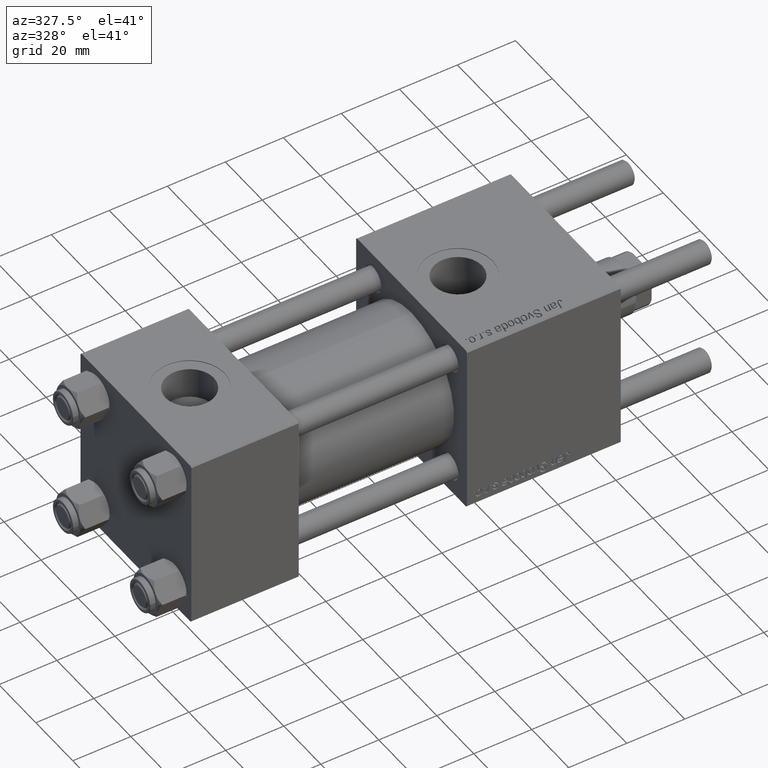
[diagram: clean part render]
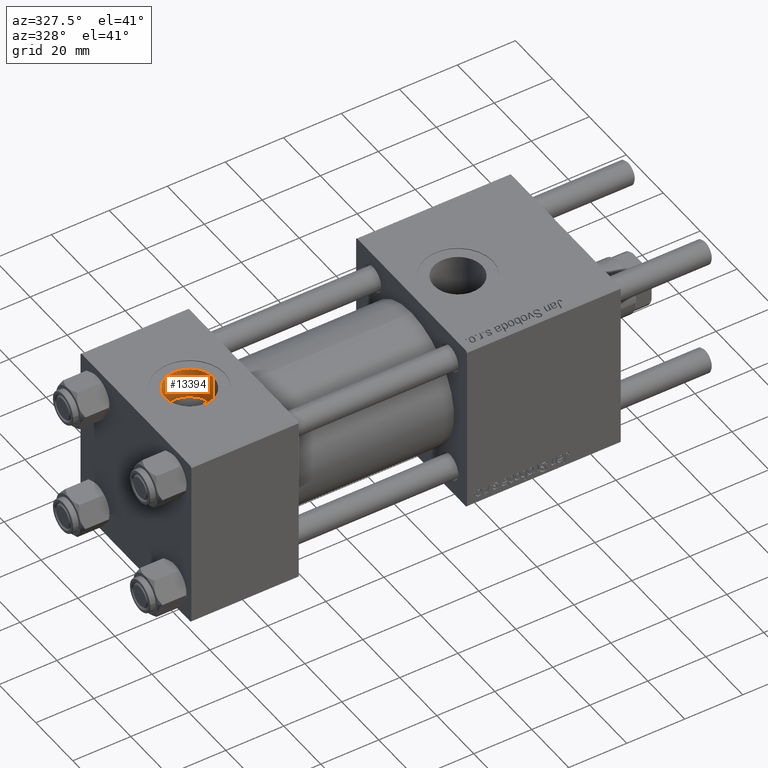
[diagram: same view with one face highlighted and labeled with its STEP entity id]
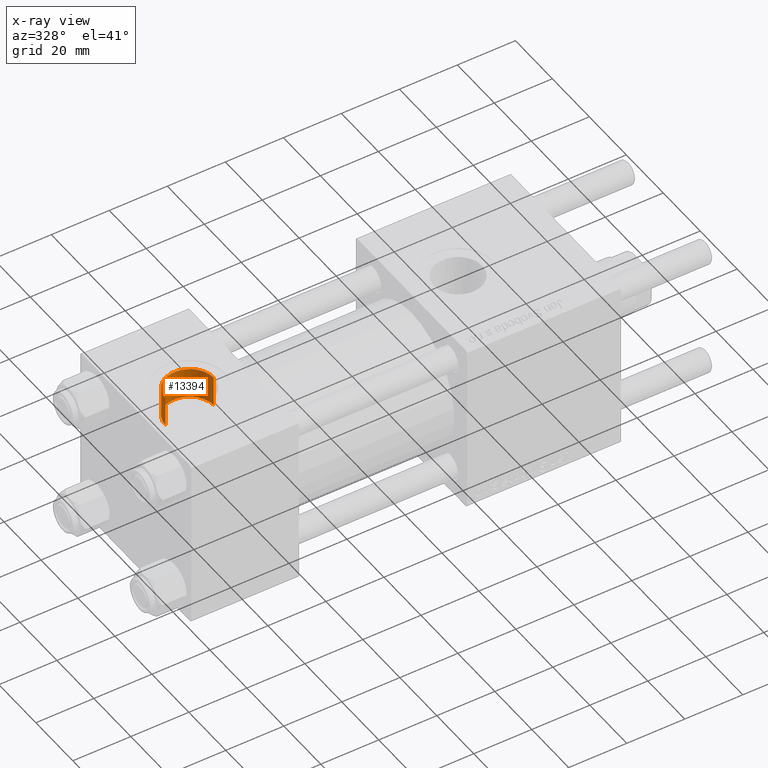
[diagram: x-ray of the same camera — body ghosted, the highlighted face saturated]
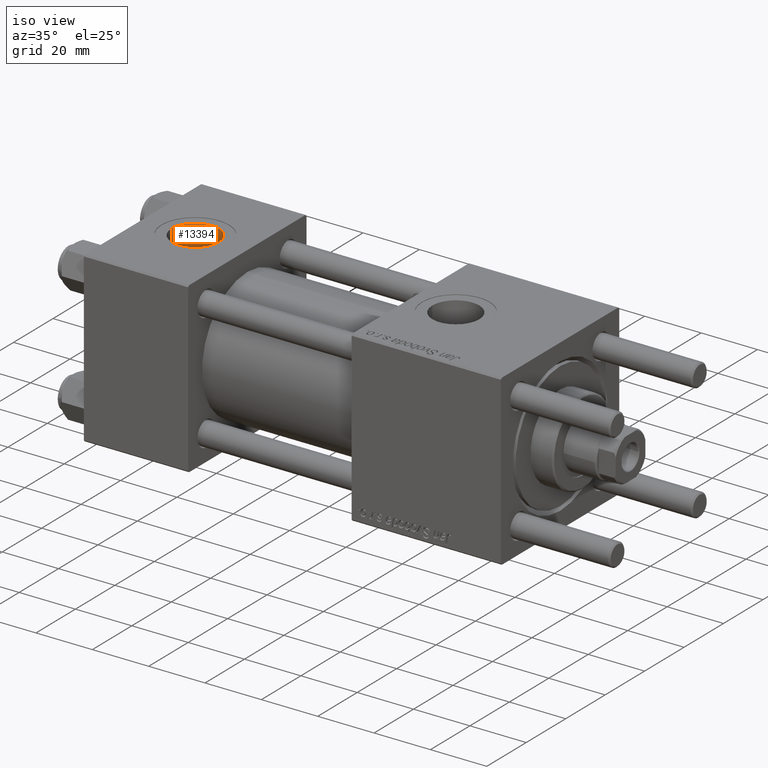
[diagram: same view with one face highlighted and labeled with its STEP entity id]
A machine part, auxiliary view. The second image highlights one B-rep face of the part: STEP entity #13394.
The next image is the same camera in x-ray: the body ghosted, the highlighted face saturated — about 0% of this face is hidden behind the body in this view.
A second angle (iso view) of the same face is appended — the face is thin or edge-on in the first view.
In plain terms, the highlighted cylindrical surface (edge-blend (fillet) strip) has radius 8.33 mm, axis along (0, 0, 1).
Its self-contained STEP definition (entity closure, byte-faithful):
#590 = VERTEX_POINT ( 'NONE', #32995 ) ;
#1878 = CARTESIAN_POINT ( 'NONE',  ( 10.16999999999999638, -2.449316168263869821E-15, 19.19999999999999574 ) ) ;
#3388 = CARTESIAN_POINT ( 'NONE',  ( 18.50000000000000000, -3.469446951953614978E-15, 19.19999999999999574 ) ) ;
#6945 = CIRCLE ( 'NONE', #42709, 8.330000000000000071 ) ;
#7136 = DIRECTION ( 'NONE',  ( -0.000000000000000000, -0.000000000000000000, 1.000000000000000000 ) ) ;
#7338 = DIRECTION ( 'NONE',  ( -0.000000000000000000, -0.000000000000000000, 1.000000000000000000 ) ) ;
#7446 = EDGE_CURVE ( 'NONE', #45607, #25686, #6945, .T. ) ;
#8711 = CARTESIAN_POINT ( 'NONE',  ( 10.16999999999999638, -2.449316168263869821E-15, 29.79999999999999716 ) ) ;
#9494 = EDGE_CURVE ( 'NONE', #49543, #25686, #21722, .T. ) ;
#10215 = EDGE_CURVE ( 'NONE', #590, #45607, #34291, .T. ) ;
#11713 = CYLINDRICAL_SURFACE ( 'NONE', #27683, 8.330000000000000071 ) ;
#12760 = ORIENTED_EDGE ( 'NONE', *, *, #7446, .T. ) ;
#13394 = ADVANCED_FACE ( 'NONE', ( #41890 ), #11713, .F. ) ;
#19459 = ORIENTED_EDGE ( 'NONE', *, *, #54553, .F. ) ;
#21722 = LINE ( 'NONE', #44702, #49348 ) ;
#25161 = DIRECTION ( 'NONE',  ( 1.000000000000000000, 0.000000000000000000, 0.000000000000000000 ) ) ;
#25686 = VERTEX_POINT ( 'NONE', #8711 ) ;
#26393 = VECTOR ( 'NONE', #7338, 1000.000000000000000 ) ;
#27683 = AXIS2_PLACEMENT_3D ( 'NONE', #3388, #7136, #38418 ) ;
#28301 = AXIS2_PLACEMENT_3D ( 'NONE', #36587, #54135, #54413 ) ;
#31548 = ORIENTED_EDGE ( 'NONE', *, *, #10215, .T. ) ;
#32995 = CARTESIAN_POINT ( 'NONE',  ( 26.82999999999999829, -3.469446951953614978E-15, 19.19999999999999574 ) ) ;
#33503 = CARTESIAN_POINT ( 'NONE',  ( 18.50000000000000000, -3.469446951953614978E-15, 29.79999999999999716 ) ) ;
#33733 = CARTESIAN_POINT ( 'NONE',  ( 26.82999999999999829, -3.469446951953614978E-15, 19.19999999999999574 ) ) ;
#34291 = LINE ( 'NONE', #33733, #26393 ) ;
#36587 = CARTESIAN_POINT ( 'NONE',  ( 18.50000000000000000, -3.469446951953614978E-15, 19.19999999999999574 ) ) ;
#38418 = DIRECTION ( 'NONE',  ( 1.000000000000000000, 0.000000000000000000, 0.000000000000000000 ) ) ;
#40092 = DIRECTION ( 'NONE',  ( -0.000000000000000000, -0.000000000000000000, 1.000000000000000000 ) ) ;
#41353 = DIRECTION ( 'NONE',  ( 0.000000000000000000, 0.000000000000000000, 1.000000000000000000 ) ) ;
#41890 = FACE_OUTER_BOUND ( 'NONE', #46760, .T. ) ;
#42709 = AXIS2_PLACEMENT_3D ( 'NONE', #33503, #41353, #25161 ) ;
#44702 = CARTESIAN_POINT ( 'NONE',  ( 10.16999999999999638, -2.449316168263869821E-15, 19.19999999999999574 ) ) ;
#45607 = VERTEX_POINT ( 'NONE', #45659 ) ;
#45659 = CARTESIAN_POINT ( 'NONE',  ( 26.82999999999999829, -3.469446951953614978E-15, 29.79999999999999716 ) ) ;
#46551 = ORIENTED_EDGE ( 'NONE', *, *, #9494, .F. ) ;
#46760 = EDGE_LOOP ( 'NONE', ( #46551, #19459, #31548, #12760 ) ) ;
#49348 = VECTOR ( 'NONE', #40092, 1000.000000000000000 ) ;
#49543 = VERTEX_POINT ( 'NONE', #1878 ) ;
#50313 = CIRCLE ( 'NONE', #28301, 8.330000000000000071 ) ;
#54135 = DIRECTION ( 'NONE',  ( 0.000000000000000000, 0.000000000000000000, 1.000000000000000000 ) ) ;
#54413 = DIRECTION ( 'NONE',  ( 1.000000000000000000, 0.000000000000000000, 0.000000000000000000 ) ) ;
#54553 = EDGE_CURVE ( 'NONE', #590, #49543, #50313, .T. ) ;